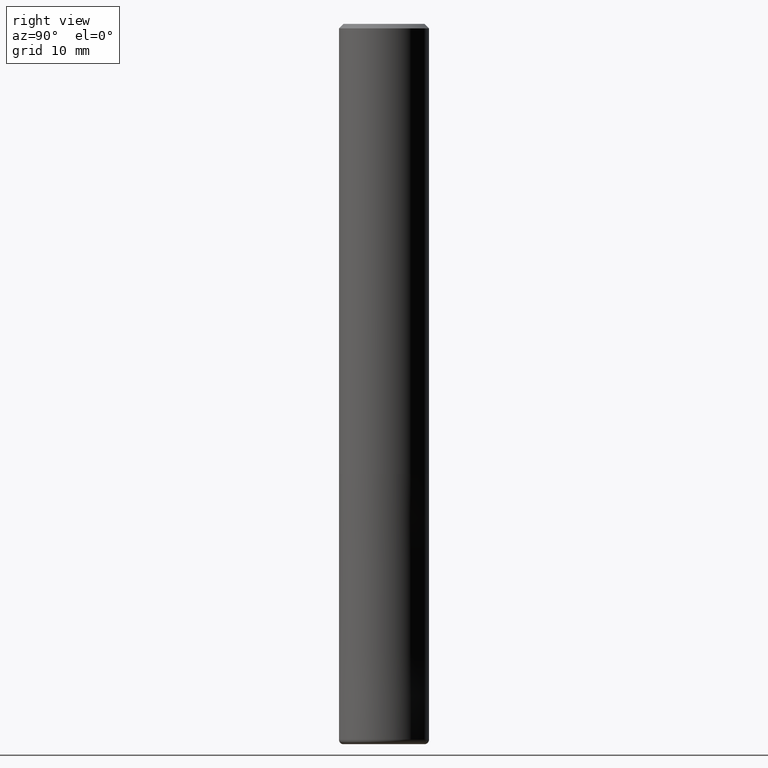
[diagram: clean part render]
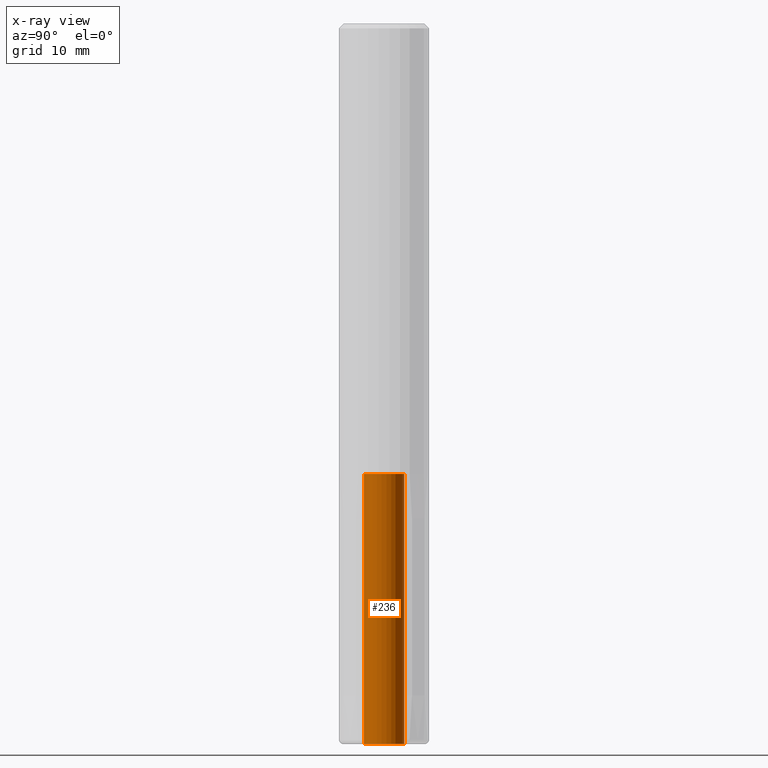
[diagram: x-ray — body ghosted, one internal face saturated and labeled with its STEP entity id]
A machine part, right view, then the same camera in x-ray: the body is ghosted and one INTERNAL B-rep face — a face not visible from any outside direction — is saturated and labeled: STEP entity #236.
In plain terms, the highlighted cylindrical surface (edge-blend (fillet) strip) has radius 2.25 mm, axis along (-0, -0, 1).
Its self-contained STEP definition (entity closure, byte-faithful):
#110=EDGE_CURVE('',#206,#124,#273,.T.);
#124=VERTEX_POINT('',#287);
#140=VERTEX_POINT('',#308);
#144=VERTEX_POINT('',#313);
#162=EDGE_CURVE('',#144,#124,#334,.T.);
#180=EDGE_CURVE('',#144,#140,#353,.T.);
#198=EDGE_CURVE('',#140,#206,#372,.T.);
#206=VERTEX_POINT('',#380);
#236=ADVANCED_FACE('',(#416),#417,.F.);
#273=LINE('',#447,#448);
#287=CARTESIAN_POINT('',(2.75536429610035E-016,-2.25,-50.0));
#308=CARTESIAN_POINT('',(0.0,2.25,-80.0));
#313=CARTESIAN_POINT('',(0.0,2.25,-50.0));
#334=CIRCLE('',#521,2.25);
#353=LINE('',#545,#546);
#372=CIRCLE('',#570,2.25);
#380=CARTESIAN_POINT('',(2.75536429610035E-016,-2.25,-80.0));
#416=FACE_OUTER_BOUND('',#626,.T.);
#417=CYLINDRICAL_SURFACE('',#627,2.25);
#447=CARTESIAN_POINT('',(2.75536429610035E-016,-2.25,-65.0));
#448=VECTOR('',#652,1.0);
#521=AXIS2_PLACEMENT_3D('',#740,#741,#742);
#545=CARTESIAN_POINT('',(-2.75536429610035E-016,2.25,-65.0));
#546=VECTOR('',#760,1.0);
#570=AXIS2_PLACEMENT_3D('',#776,#777,#778);
#626=EDGE_LOOP('',(#834,#835,#836,#837));
#627=AXIS2_PLACEMENT_3D('',#838,#839,#840);
#652=DIRECTION('',(0.0,-0.0,1.0));
#740=CARTESIAN_POINT('',(0.0,0.0,-50.0));
#741=DIRECTION('',(0.0,0.0,-1.0));
#742=DIRECTION('',(0.0,1.0,0.0));
#760=DIRECTION('',(0.0,-0.0,-1.0));
#776=CARTESIAN_POINT('',(0.0,0.0,-80.0));
#777=DIRECTION('',(0.0,0.0,-1.0));
#778=DIRECTION('',(0.0,1.0,0.0));
#834=ORIENTED_EDGE('',*,*,#180,.T.);
#835=ORIENTED_EDGE('',*,*,#198,.T.);
#836=ORIENTED_EDGE('',*,*,#110,.T.);
#837=ORIENTED_EDGE('',*,*,#162,.F.);
#838=CARTESIAN_POINT('',(0.0,0.0,-65.0));
#839=DIRECTION('',(-0.0,-0.0,1.0));
#840=DIRECTION('',(0.0,1.0,0.0));